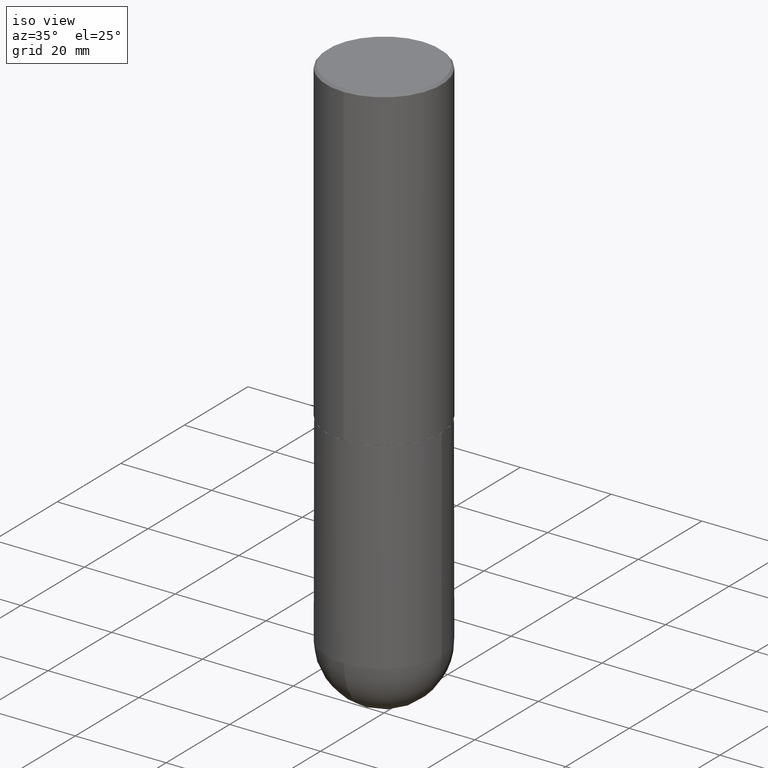
[diagram: clean part render]
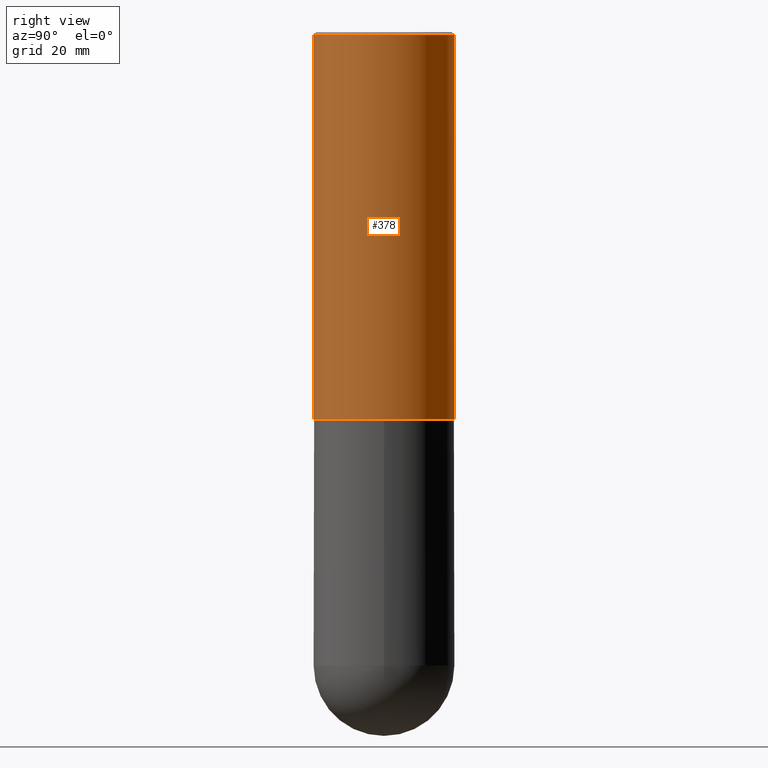
[diagram: tour spotlight — one face highlighted and labeled with its STEP entity id]
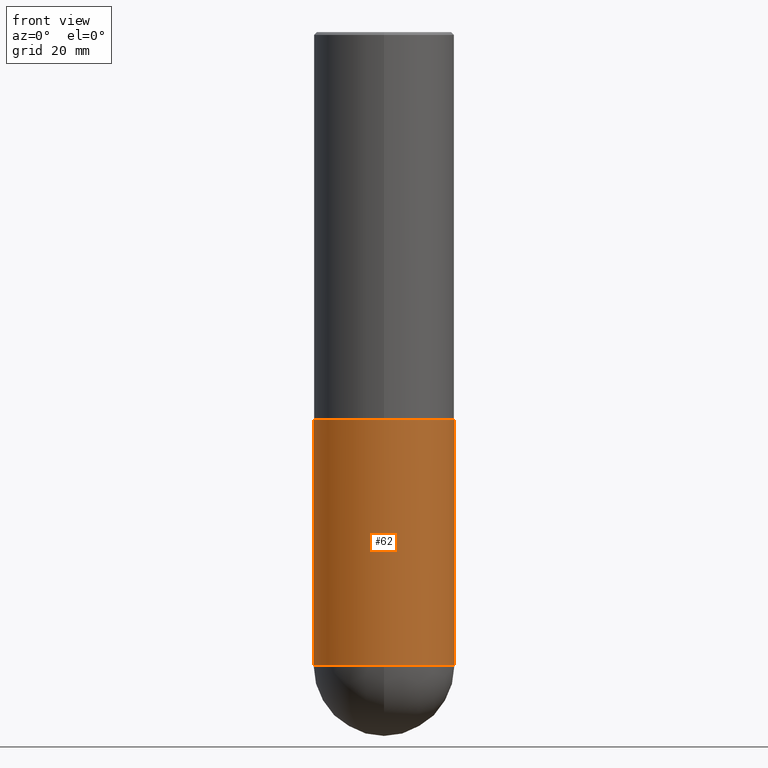
[diagram: tour spotlight — one face highlighted and labeled with its STEP entity id]
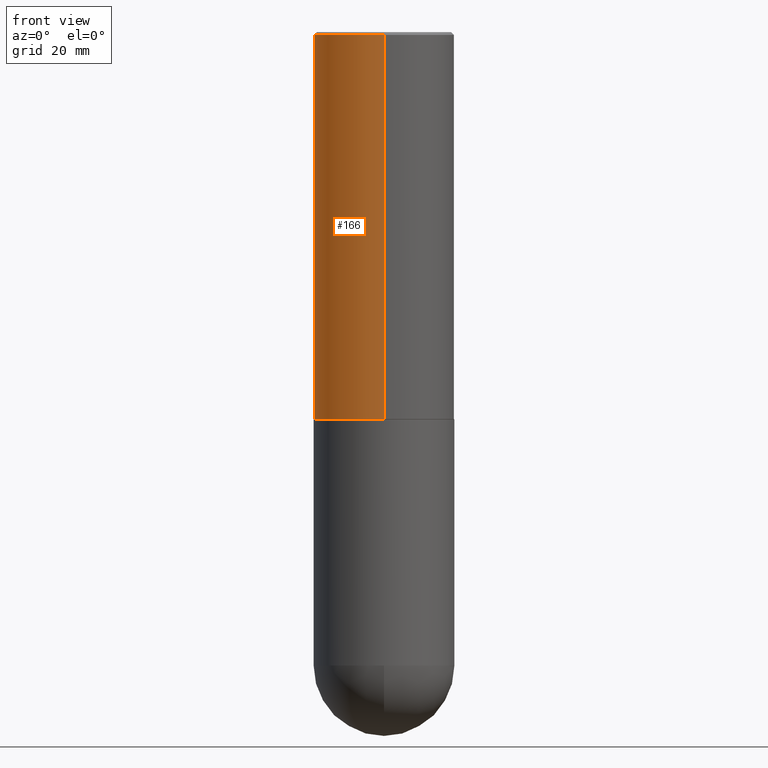
[diagram: tour spotlight — one face highlighted and labeled with its STEP entity id]
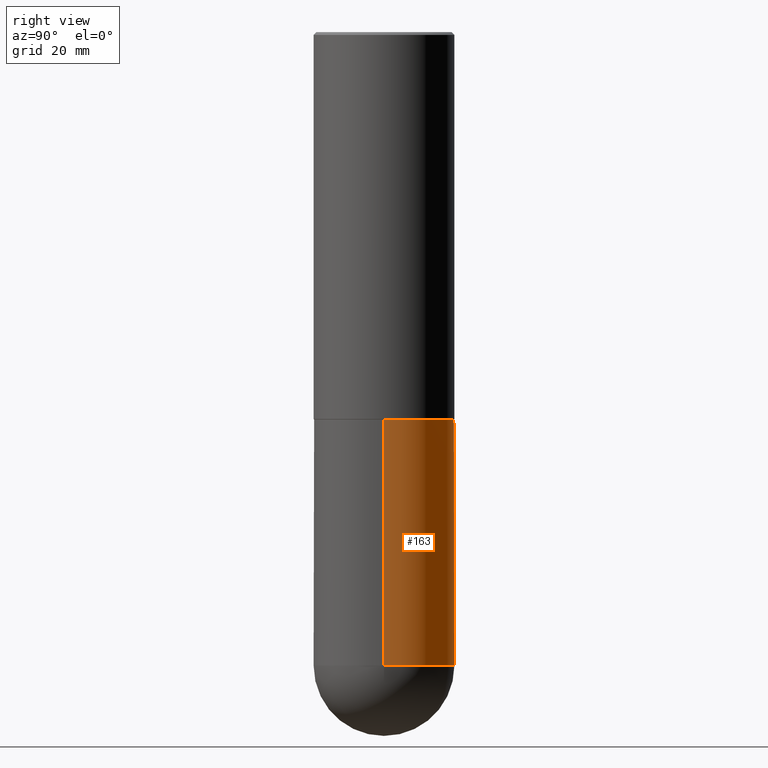
[diagram: tour spotlight — one face highlighted and labeled with its STEP entity id]
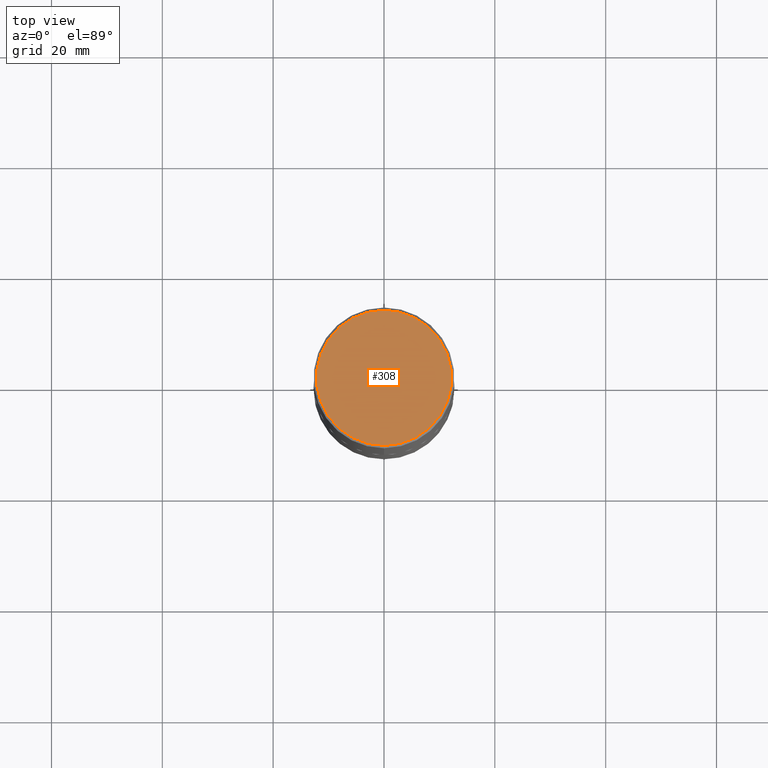
[diagram: tour spotlight — one face highlighted and labeled with its STEP entity id]
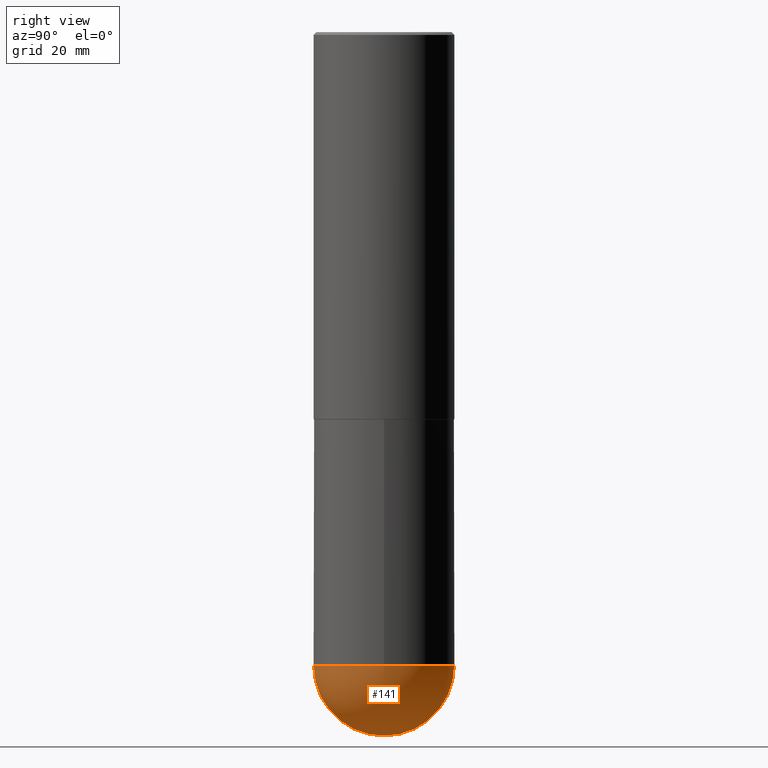
[diagram: tour spotlight — one face highlighted and labeled with its STEP entity id]
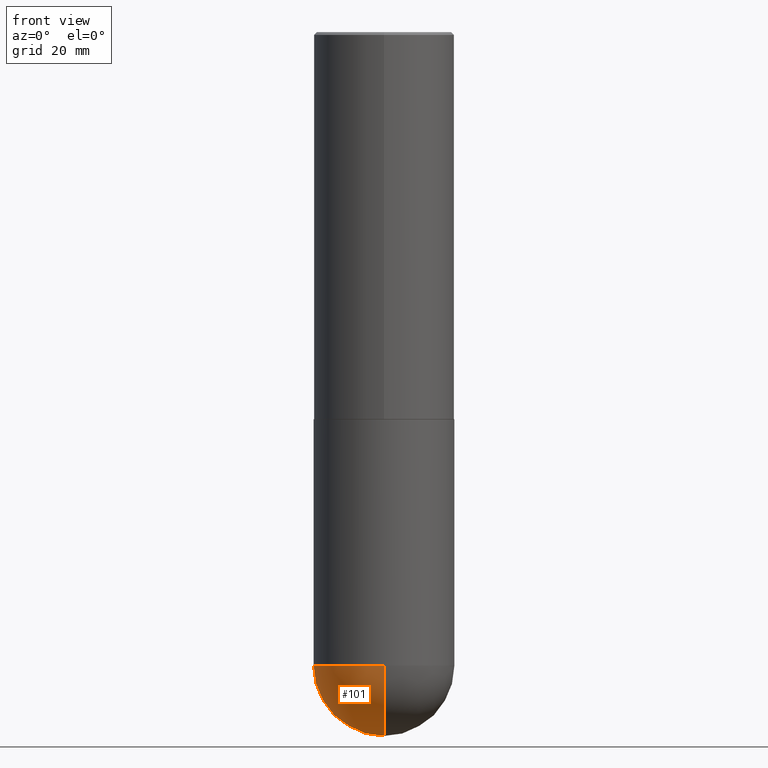
[diagram: tour spotlight — one face highlighted and labeled with its STEP entity id]
A machine part: a face-by-face anatomy tour. The part has 13 B-rep faces; the first image is the clean iso view, then the 7 largest visible faces are spotlighted one at a time (largest first), each with its STEP entity span.

Face 1 — right view, entity #378. In plain terms, the highlighted cylindrical surface (partial cylindrical patch) has radius 12.7 mm, axis along (-0, 0, 1).
Definition (entity closure, byte-faithful):
#16 = ORIENTED_EDGE ( 'NONE', *, *, #115, .F. ) ;
#30 = CARTESIAN_POINT ( 'NONE',  ( -3.491481338843134933E-15, -0.5000000000000002220, 1.747237952946052073E-15 ) ) ;
#67 = CARTESIAN_POINT ( 'NONE',  ( 3.552713678800502507E-15, 0.5000000000000002220, -1.747237952946052073E-15 ) ) ;
#73 = EDGE_CURVE ( 'NONE', #105, #311, #224, .T. ) ;
#82 = CIRCLE ( 'NONE', #301, 0.5000000000000001110 ) ;
#96 = LINE ( 'NONE', #67, #204 ) ;
#98 = CARTESIAN_POINT ( 'NONE',  ( 3.552713678800536428E-15, 0.4999999999999908407, -2.749000000000001886 ) ) ;
#99 = DIRECTION ( 'NONE',  ( -6.982962677686265133E-15, -1.000000000000000000, 3.278217592397113101E-15 ) ) ;
#105 = VERTEX_POINT ( 'NONE', #248 ) ;
#108 = EDGE_CURVE ( 'NONE', #198, #242, #82, .T. ) ;
#115 = EDGE_CURVE ( 'NONE', #105, #198, #190, .T. ) ;
#138 = VECTOR ( 'NONE', #294, 39.37007874015748143 ) ;
#154 = DIRECTION ( 'NONE',  ( -6.982962677686266711E-15, -1.000000000000000000, 3.494475905892102568E-15 ) ) ;
#159 = DIRECTION ( 'NONE',  ( -6.982962677686265922E-15, -1.000000000000000000, 3.491643216902135619E-15 ) ) ;
#160 = DIRECTION ( 'NONE',  ( -2.443377711191267396E-29, 3.494475905892102173E-15, 1.000000000000000000 ) ) ;
#167 = AXIS2_PLACEMENT_3D ( 'NONE', #185, #322, #154 ) ;
#185 = CARTESIAN_POINT ( 'NONE',  ( 0.000000000000000000, 0.000000000000000000, 0.000000000000000000 ) ) ;
#190 = LINE ( 'NONE', #30, #138 ) ;
#193 = EDGE_CURVE ( 'NONE', #311, #242, #96, .T. ) ;
#197 = EDGE_LOOP ( 'NONE', ( #203, #205, #367, #16 ) ) ;
#198 = VERTEX_POINT ( 'NONE', #398 ) ;
#203 = ORIENTED_EDGE ( 'NONE', *, *, #73, .T. ) ;
#204 = VECTOR ( 'NONE', #327, 39.37007874015748143 ) ;
#205 = ORIENTED_EDGE ( 'NONE', *, *, #193, .T. ) ;
#224 = CIRCLE ( 'NONE', #287, 0.5000000000000004441 ) ;
#242 = VERTEX_POINT ( 'NONE', #400 ) ;
#248 = CARTESIAN_POINT ( 'NONE',  ( -3.491481338843069063E-15, -0.5000000000000099920, -2.748999999999998334 ) ) ;
#287 = AXIS2_PLACEMENT_3D ( 'NONE', #385, #324, #99 ) ;
#288 = CARTESIAN_POINT ( 'NONE',  ( 4.886755422382561102E-31, -6.988951811784240684E-17, -0.02000000000000010797 ) ) ;
#294 = DIRECTION ( 'NONE',  ( -2.443377711191267116E-29, 3.494475905892102173E-15, 1.000000000000000000 ) ) ;
#301 = AXIS2_PLACEMENT_3D ( 'NONE', #288, #160, #159 ) ;
#311 = VERTEX_POINT ( 'NONE', #98 ) ;
#319 = FACE_OUTER_BOUND ( 'NONE', #197, .T. ) ;
#322 = DIRECTION ( 'NONE',  ( -2.443377711191267396E-29, 3.494475905892102173E-15, 1.000000000000000000 ) ) ;
#324 = DIRECTION ( 'NONE',  ( -2.443377711191267396E-29, 3.494475905892102173E-15, 1.000000000000000000 ) ) ;
#327 = DIRECTION ( 'NONE',  ( -2.443377711191267116E-29, 3.494475905892102173E-15, 1.000000000000000000 ) ) ;
#348 = CYLINDRICAL_SURFACE ( 'NONE', #167, 0.5000000000000002220 ) ;
#367 = ORIENTED_EDGE ( 'NONE', *, *, #108, .F. ) ;
#378 = ADVANCED_FACE ( 'NONE', ( #319 ), #348, .T. ) ;
#385 = CARTESIAN_POINT ( 'NONE',  ( 6.716845328064793866E-29, -9.606314265297387659E-15, -2.749000000000000110 ) ) ;
#398 = CARTESIAN_POINT ( 'NONE',  ( -3.430248998885765781E-15, -0.5000000000000002220, -0.01999999999999835937 ) ) ;
#400 = CARTESIAN_POINT ( 'NONE',  ( 3.491481338843134539E-15, 0.5000000000000001110, -0.02000000000000185310 ) ) ;

Face 2 — front view, entity #62. In plain terms, the highlighted cylindrical surface (partial cylindrical patch) has radius 12.7 mm, axis along (-0, 0, 1).
Definition (entity closure, byte-faithful):
#9 = DIRECTION ( 'NONE',  ( 1.000000000000000000, -6.982962677686266711E-15, 4.876176775795935793E-29 ) ) ;
#27 = ORIENTED_EDGE ( 'NONE', *, *, #408, .T. ) ;
#32 = VECTOR ( 'NONE', #263, 39.37007874015748143 ) ;
#46 = CARTESIAN_POINT ( 'NONE',  ( 1.100460962783311693E-28, -1.571166602479415690E-14, -4.500000000000000888 ) ) ;
#47 = DIRECTION ( 'NONE',  ( 1.000000000000000000, -6.982962677686270655E-15, 0.000000000000000000 ) ) ;
#52 = AXIS2_PLACEMENT_3D ( 'NONE', #355, #252, #9 ) ;
#57 = ORIENTED_EDGE ( 'NONE', *, *, #337, .T. ) ;
#62 = ADVANCED_FACE ( 'NONE', ( #176 ), #145, .T. ) ;
#64 = CARTESIAN_POINT ( 'NONE',  ( 0.5000000000000000000, -1.614810119214954068E-14, -4.500000000000000888 ) ) ;
#70 = AXIS2_PLACEMENT_3D ( 'NONE', #46, #180, #118 ) ;
#72 = CARTESIAN_POINT ( 'NONE',  ( 0.5000000000000000000, -3.491481338843133355E-15, 2.438088387897967896E-29 ) ) ;
#75 = CIRCLE ( 'NONE', #70, 0.5000000000000000000 ) ;
#83 = ORIENTED_EDGE ( 'NONE', *, *, #250, .F. ) ;
#106 = VERTEX_POINT ( 'NONE', #64 ) ;
#118 = DIRECTION ( 'NONE',  ( 1.000000000000000000, -6.982962677686270655E-15, 0.000000000000000000 ) ) ;
#131 = CARTESIAN_POINT ( 'NONE',  ( -0.5000000000000000000, -9.103906174505906393E-15, -4.500000000000000888 ) ) ;
#132 = CARTESIAN_POINT ( 'NONE',  ( -0.5000000000000000000, -9.103906174505901660E-15, -2.750000000000000000 ) ) ;
#135 = DIRECTION ( 'NONE',  ( -2.445468806185136877E-29, 3.491481338843145188E-15, 1.000000000000000000 ) ) ;
#143 = CIRCLE ( 'NONE', #354, 0.5000000000000000000 ) ;
#145 = CYLINDRICAL_SURFACE ( 'NONE', #52, 0.5000000000000000000 ) ;
#169 = CARTESIAN_POINT ( 'NONE',  ( 6.725039217009124520E-29, -9.601573681818649859E-15, -2.750000000000000000 ) ) ;
#170 = VERTEX_POINT ( 'NONE', #131 ) ;
#176 = FACE_OUTER_BOUND ( 'NONE', #177, .T. ) ;
#177 = EDGE_LOOP ( 'NONE', ( #83, #27, #57, #229, #280 ) ) ;
#180 = DIRECTION ( 'NONE',  ( -2.445468806185136597E-29, 3.491481338843145583E-15, 1.000000000000000000 ) ) ;
#183 = DIRECTION ( 'NONE',  ( -2.445468806185136597E-29, 3.491481338843145583E-15, 1.000000000000000000 ) ) ;
#214 = CARTESIAN_POINT ( 'NONE',  ( 0.5000000000000000000, -1.309305502066178321E-14, -2.750000000000000000 ) ) ;
#225 = AXIS2_PLACEMENT_3D ( 'NONE', #299, #227, #47 ) ;
#227 = DIRECTION ( 'NONE',  ( -2.445468806185136597E-29, 3.491481338843145583E-15, 1.000000000000000000 ) ) ;
#229 = ORIENTED_EDGE ( 'NONE', *, *, #291, .T. ) ;
#250 = EDGE_CURVE ( 'NONE', #170, #276, #305, .T. ) ;
#252 = DIRECTION ( 'NONE',  ( -2.445468806185136597E-29, 3.491481338843145583E-15, 1.000000000000000000 ) ) ;
#258 = CARTESIAN_POINT ( 'NONE',  ( -3.552713678800393250E-15, -0.5000000000000160982, -4.499999999999999112 ) ) ;
#263 = DIRECTION ( 'NONE',  ( -2.445468806185136877E-29, 3.491481338843145188E-15, 1.000000000000000000 ) ) ;
#276 = VERTEX_POINT ( 'NONE', #132 ) ;
#280 = ORIENTED_EDGE ( 'NONE', *, *, #372, .F. ) ;
#289 = CIRCLE ( 'NONE', #225, 0.5000000000000000000 ) ;
#291 = EDGE_CURVE ( 'NONE', #106, #364, #397, .T. ) ;
#298 = CARTESIAN_POINT ( 'NONE',  ( -0.5000000000000000000, 3.552713678800500929E-15, -2.459467545127452891E-29 ) ) ;
#299 = CARTESIAN_POINT ( 'NONE',  ( 1.100460962783311693E-28, -1.571166602479415690E-14, -4.500000000000000888 ) ) ;
#300 = VERTEX_POINT ( 'NONE', #258 ) ;
#303 = VECTOR ( 'NONE', #135, 39.37007874015748143 ) ;
#305 = LINE ( 'NONE', #298, #32 ) ;
#337 = EDGE_CURVE ( 'NONE', #300, #106, #75, .T. ) ;
#354 = AXIS2_PLACEMENT_3D ( 'NONE', #169, #183, #399 ) ;
#355 = CARTESIAN_POINT ( 'NONE',  ( 0.000000000000000000, 0.000000000000000000, 0.000000000000000000 ) ) ;
#364 = VERTEX_POINT ( 'NONE', #214 ) ;
#372 = EDGE_CURVE ( 'NONE', #276, #364, #143, .T. ) ;
#397 = LINE ( 'NONE', #72, #303 ) ;
#399 = DIRECTION ( 'NONE',  ( 1.000000000000000000, -6.982962677686266711E-15, 0.000000000000000000 ) ) ;
#408 = EDGE_CURVE ( 'NONE', #170, #300, #289, .T. ) ;

Face 3 — front view, entity #166. In plain terms, the highlighted cylindrical surface (partial cylindrical patch) has radius 12.7 mm, axis along (-0, 0, 1).
Definition (entity closure, byte-faithful):
#11 = CIRCLE ( 'NONE', #188, 0.5000000000000001110 ) ;
#20 = ORIENTED_EDGE ( 'NONE', *, *, #193, .F. ) ;
#30 = CARTESIAN_POINT ( 'NONE',  ( -3.491481338843134933E-15, -0.5000000000000002220, 1.747237952946052073E-15 ) ) ;
#31 = AXIS2_PLACEMENT_3D ( 'NONE', #38, #66, #383 ) ;
#38 = CARTESIAN_POINT ( 'NONE',  ( 6.716845328064793866E-29, -9.606314265297387659E-15, -2.749000000000000110 ) ) ;
#39 = DIRECTION ( 'NONE',  ( -6.982962677686266711E-15, -1.000000000000000000, 3.494475905892102568E-15 ) ) ;
#66 = DIRECTION ( 'NONE',  ( -2.443377711191267396E-29, 3.494475905892102173E-15, 1.000000000000000000 ) ) ;
#67 = CARTESIAN_POINT ( 'NONE',  ( 3.552713678800502507E-15, 0.5000000000000002220, -1.747237952946052073E-15 ) ) ;
#90 = EDGE_CURVE ( 'NONE', #311, #105, #155, .T. ) ;
#96 = LINE ( 'NONE', #67, #204 ) ;
#98 = CARTESIAN_POINT ( 'NONE',  ( 3.552713678800536428E-15, 0.4999999999999908407, -2.749000000000001886 ) ) ;
#105 = VERTEX_POINT ( 'NONE', #248 ) ;
#115 = EDGE_CURVE ( 'NONE', #105, #198, #190, .T. ) ;
#138 = VECTOR ( 'NONE', #294, 39.37007874015748143 ) ;
#155 = CIRCLE ( 'NONE', #31, 0.5000000000000004441 ) ;
#166 = ADVANCED_FACE ( 'NONE', ( #389 ), #328, .T. ) ;
#186 = DIRECTION ( 'NONE',  ( -2.443377711191267396E-29, 3.494475905892102173E-15, 1.000000000000000000 ) ) ;
#188 = AXIS2_PLACEMENT_3D ( 'NONE', #232, #268, #260 ) ;
#190 = LINE ( 'NONE', #30, #138 ) ;
#193 = EDGE_CURVE ( 'NONE', #311, #242, #96, .T. ) ;
#198 = VERTEX_POINT ( 'NONE', #398 ) ;
#204 = VECTOR ( 'NONE', #327, 39.37007874015748143 ) ;
#232 = CARTESIAN_POINT ( 'NONE',  ( 4.886755422382561102E-31, -6.988951811784240684E-17, -0.02000000000000010797 ) ) ;
#242 = VERTEX_POINT ( 'NONE', #400 ) ;
#248 = CARTESIAN_POINT ( 'NONE',  ( -3.491481338843069063E-15, -0.5000000000000099920, -2.748999999999998334 ) ) ;
#260 = DIRECTION ( 'NONE',  ( -6.982962677686265922E-15, -1.000000000000000000, 3.491643216902135619E-15 ) ) ;
#268 = DIRECTION ( 'NONE',  ( -2.443377711191267396E-29, 3.494475905892102173E-15, 1.000000000000000000 ) ) ;
#273 = ORIENTED_EDGE ( 'NONE', *, *, #115, .T. ) ;
#292 = CARTESIAN_POINT ( 'NONE',  ( 0.000000000000000000, 0.000000000000000000, 0.000000000000000000 ) ) ;
#294 = DIRECTION ( 'NONE',  ( -2.443377711191267116E-29, 3.494475905892102173E-15, 1.000000000000000000 ) ) ;
#311 = VERTEX_POINT ( 'NONE', #98 ) ;
#317 = AXIS2_PLACEMENT_3D ( 'NONE', #292, #186, #39 ) ;
#327 = DIRECTION ( 'NONE',  ( -2.443377711191267116E-29, 3.494475905892102173E-15, 1.000000000000000000 ) ) ;
#328 = CYLINDRICAL_SURFACE ( 'NONE', #317, 0.5000000000000002220 ) ;
#335 = ORIENTED_EDGE ( 'NONE', *, *, #390, .F. ) ;
#370 = EDGE_LOOP ( 'NONE', ( #20, #373, #273, #335 ) ) ;
#373 = ORIENTED_EDGE ( 'NONE', *, *, #90, .T. ) ;
#383 = DIRECTION ( 'NONE',  ( -6.982962677686265133E-15, -1.000000000000000000, 3.278217592397113101E-15 ) ) ;
#389 = FACE_OUTER_BOUND ( 'NONE', #370, .T. ) ;
#390 = EDGE_CURVE ( 'NONE', #242, #198, #11, .T. ) ;
#398 = CARTESIAN_POINT ( 'NONE',  ( -3.430248998885765781E-15, -0.5000000000000002220, -0.01999999999999835937 ) ) ;
#400 = CARTESIAN_POINT ( 'NONE',  ( 3.491481338843134539E-15, 0.5000000000000001110, -0.02000000000000185310 ) ) ;

Face 4 — right view, entity #163. In plain terms, the highlighted cylindrical surface (partial cylindrical patch) has radius 12.7 mm, axis along (-0, 0, 1).
Definition (entity closure, byte-faithful):
#4 = AXIS2_PLACEMENT_3D ( 'NONE', #24, #58, #249 ) ;
#24 = CARTESIAN_POINT ( 'NONE',  ( 1.100460962783311693E-28, -1.571166602479415690E-14, -4.500000000000000888 ) ) ;
#32 = VECTOR ( 'NONE', #263, 39.37007874015748143 ) ;
#36 = DIRECTION ( 'NONE',  ( 1.000000000000000000, -6.982962677686266711E-15, 4.876176775795935793E-29 ) ) ;
#44 = EDGE_CURVE ( 'NONE', #306, #170, #219, .T. ) ;
#58 = DIRECTION ( 'NONE',  ( -2.445468806185136597E-29, 3.491481338843145583E-15, 1.000000000000000000 ) ) ;
#63 = FACE_OUTER_BOUND ( 'NONE', #74, .T. ) ;
#64 = CARTESIAN_POINT ( 'NONE',  ( 0.5000000000000000000, -1.614810119214954068E-14, -4.500000000000000888 ) ) ;
#71 = ORIENTED_EDGE ( 'NONE', *, *, #250, .T. ) ;
#72 = CARTESIAN_POINT ( 'NONE',  ( 0.5000000000000000000, -3.491481338843133355E-15, 2.438088387897967896E-29 ) ) ;
#74 = EDGE_LOOP ( 'NONE', ( #269, #71, #137, #76, #149 ) ) ;
#76 = ORIENTED_EDGE ( 'NONE', *, *, #291, .F. ) ;
#84 = DIRECTION ( 'NONE',  ( 1.000000000000000000, -6.982962677686266711E-15, 0.000000000000000000 ) ) ;
#88 = CARTESIAN_POINT ( 'NONE',  ( 1.100460962783311693E-28, -1.571166602479415690E-14, -4.500000000000000888 ) ) ;
#106 = VERTEX_POINT ( 'NONE', #64 ) ;
#111 = CIRCLE ( 'NONE', #302, 0.5000000000000000000 ) ;
#119 = CIRCLE ( 'NONE', #4, 0.5000000000000000000 ) ;
#131 = CARTESIAN_POINT ( 'NONE',  ( -0.5000000000000000000, -9.103906174505906393E-15, -4.500000000000000888 ) ) ;
#132 = CARTESIAN_POINT ( 'NONE',  ( -0.5000000000000000000, -9.103906174505901660E-15, -2.750000000000000000 ) ) ;
#135 = DIRECTION ( 'NONE',  ( -2.445468806185136877E-29, 3.491481338843145188E-15, 1.000000000000000000 ) ) ;
#137 = ORIENTED_EDGE ( 'NONE', *, *, #346, .F. ) ;
#139 = AXIS2_PLACEMENT_3D ( 'NONE', #194, #326, #36 ) ;
#149 = ORIENTED_EDGE ( 'NONE', *, *, #361, .T. ) ;
#163 = ADVANCED_FACE ( 'NONE', ( #63 ), #253, .T. ) ;
#170 = VERTEX_POINT ( 'NONE', #131 ) ;
#194 = CARTESIAN_POINT ( 'NONE',  ( 0.000000000000000000, 0.000000000000000000, 0.000000000000000000 ) ) ;
#211 = DIRECTION ( 'NONE',  ( -2.445468806185136597E-29, 3.491481338843145583E-15, 1.000000000000000000 ) ) ;
#214 = CARTESIAN_POINT ( 'NONE',  ( 0.5000000000000000000, -1.309305502066178321E-14, -2.750000000000000000 ) ) ;
#219 = CIRCLE ( 'NONE', #262, 0.5000000000000000000 ) ;
#243 = CARTESIAN_POINT ( 'NONE',  ( 6.725039217009124520E-29, -9.601573681818649859E-15, -2.750000000000000000 ) ) ;
#249 = DIRECTION ( 'NONE',  ( 1.000000000000000000, -6.982962677686270655E-15, 0.000000000000000000 ) ) ;
#250 = EDGE_CURVE ( 'NONE', #170, #276, #305, .T. ) ;
#253 = CYLINDRICAL_SURFACE ( 'NONE', #139, 0.5000000000000000000 ) ;
#262 = AXIS2_PLACEMENT_3D ( 'NONE', #88, #211, #412 ) ;
#263 = DIRECTION ( 'NONE',  ( -2.445468806185136877E-29, 3.491481338843145188E-15, 1.000000000000000000 ) ) ;
#266 = CARTESIAN_POINT ( 'NONE',  ( 3.491481338843242218E-15, 0.4999999999999841238, -4.500000000000002665 ) ) ;
#269 = ORIENTED_EDGE ( 'NONE', *, *, #44, .T. ) ;
#276 = VERTEX_POINT ( 'NONE', #132 ) ;
#291 = EDGE_CURVE ( 'NONE', #106, #364, #397, .T. ) ;
#298 = CARTESIAN_POINT ( 'NONE',  ( -0.5000000000000000000, 3.552713678800500929E-15, -2.459467545127452891E-29 ) ) ;
#302 = AXIS2_PLACEMENT_3D ( 'NONE', #243, #380, #84 ) ;
#303 = VECTOR ( 'NONE', #135, 39.37007874015748143 ) ;
#305 = LINE ( 'NONE', #298, #32 ) ;
#306 = VERTEX_POINT ( 'NONE', #266 ) ;
#326 = DIRECTION ( 'NONE',  ( -2.445468806185136597E-29, 3.491481338843145583E-15, 1.000000000000000000 ) ) ;
#346 = EDGE_CURVE ( 'NONE', #364, #276, #111, .T. ) ;
#361 = EDGE_CURVE ( 'NONE', #106, #306, #119, .T. ) ;
#364 = VERTEX_POINT ( 'NONE', #214 ) ;
#380 = DIRECTION ( 'NONE',  ( -2.445468806185136597E-29, 3.491481338843145583E-15, 1.000000000000000000 ) ) ;
#397 = LINE ( 'NONE', #72, #303 ) ;
#412 = DIRECTION ( 'NONE',  ( 1.000000000000000000, -6.982962677686270655E-15, 0.000000000000000000 ) ) ;

Face 5 — top view, entity #308. In plain terms, the highlighted planar face has unit normal (0, -0, -1).
Definition (entity closure, byte-faithful):
#6 = EDGE_CURVE ( 'NONE', #122, #208, #295, .T. ) ;
#10 = DIRECTION ( 'NONE',  ( -2.443377711191267396E-29, 3.494475905892102173E-15, 1.000000000000000000 ) ) ;
#40 = FACE_OUTER_BOUND ( 'NONE', #405, .T. ) ;
#56 = DIRECTION ( 'NONE',  ( -2.443377711191267396E-29, 3.494475905892102173E-15, 1.000000000000000000 ) ) ;
#113 = ORIENTED_EDGE ( 'NONE', *, *, #255, .T. ) ;
#122 = VERTEX_POINT ( 'NONE', #187 ) ;
#136 = CARTESIAN_POINT ( 'NONE',  ( -3.361644018908050450E-15, -0.4800000000000001488, 1.606221114680001624E-15 ) ) ;
#144 = ORIENTED_EDGE ( 'NONE', *, *, #6, .T. ) ;
#164 = DIRECTION ( 'NONE',  ( 6.982962677686265922E-15, 1.000000000000000000, -3.494475905892102173E-15 ) ) ;
#179 = DIRECTION ( 'NONE',  ( -6.982962677686265922E-15, -1.000000000000000000, 3.494475905892102173E-15 ) ) ;
#187 = CARTESIAN_POINT ( 'NONE',  ( 3.421651712066271635E-15, 0.4800000000000001488, -1.748475754976417733E-15 ) ) ;
#199 = AXIS2_PLACEMENT_3D ( 'NONE', #256, #388, #164 ) ;
#208 = VERTEX_POINT ( 'NONE', #136 ) ;
#233 = CIRCLE ( 'NONE', #407, 0.4800000000000001488 ) ;
#240 = AXIS2_PLACEMENT_3D ( 'NONE', #314, #56, #179 ) ;
#255 = EDGE_CURVE ( 'NONE', #208, #122, #233, .T. ) ;
#256 = CARTESIAN_POINT ( 'NONE',  ( 3.351822085289408731E-15, 0.4800000000000001488, -1.712912094902313262E-15 ) ) ;
#295 = CIRCLE ( 'NONE', #240, 0.4800000000000001488 ) ;
#308 = ADVANCED_FACE ( 'NONE', ( #40 ), #391, .F. ) ;
#314 = CARTESIAN_POINT ( 'NONE',  ( 1.737909087068967574E-45, -2.485527065085864041E-31, -7.112732014820790665E-17 ) ) ;
#330 = DIRECTION ( 'NONE',  ( -6.982962677686265922E-15, -1.000000000000000000, 3.494475905892102173E-15 ) ) ;
#333 = CARTESIAN_POINT ( 'NONE',  ( 1.737909087068967574E-45, -2.485527065085864041E-31, -7.112732014820790665E-17 ) ) ;
#388 = DIRECTION ( 'NONE',  ( 2.443377711191267116E-29, -3.494475905892102173E-15, -1.000000000000000000 ) ) ;
#391 = PLANE ( 'NONE',  #199 ) ;
#405 = EDGE_LOOP ( 'NONE', ( #144, #113 ) ) ;
#407 = AXIS2_PLACEMENT_3D ( 'NONE', #333, #10, #330 ) ;

Face 6 — right view, entity #141. In plain terms, the highlighted spherical surface has radius 12.7 mm.
Definition (entity closure, byte-faithful):
#4 = AXIS2_PLACEMENT_3D ( 'NONE', #24, #58, #249 ) ;
#24 = CARTESIAN_POINT ( 'NONE',  ( 1.100460962783311693E-28, -1.571166602479415690E-14, -4.500000000000000888 ) ) ;
#46 = CARTESIAN_POINT ( 'NONE',  ( 1.100460962783311693E-28, -1.571166602479415690E-14, -4.500000000000000888 ) ) ;
#58 = DIRECTION ( 'NONE',  ( -2.445468806185136597E-29, 3.491481338843145583E-15, 1.000000000000000000 ) ) ;
#59 = CIRCLE ( 'NONE', #120, 0.5000000000000002220 ) ;
#64 = CARTESIAN_POINT ( 'NONE',  ( 0.5000000000000000000, -1.614810119214954068E-14, -4.500000000000000888 ) ) ;
#68 = DIRECTION ( 'NONE',  ( 1.000000000000000000, -6.982962677686265922E-15, 4.883557194083112340E-29 ) ) ;
#70 = AXIS2_PLACEMENT_3D ( 'NONE', #46, #180, #118 ) ;
#75 = CIRCLE ( 'NONE', #70, 0.5000000000000000000 ) ;
#91 = CARTESIAN_POINT ( 'NONE',  ( 1.067348984991922956E-28, -1.618584839293420562E-14, -4.500000000000000000 ) ) ;
#106 = VERTEX_POINT ( 'NONE', #64 ) ;
#118 = DIRECTION ( 'NONE',  ( 1.000000000000000000, -6.982962677686270655E-15, 0.000000000000000000 ) ) ;
#119 = CIRCLE ( 'NONE', #4, 0.5000000000000000000 ) ;
#120 = AXIS2_PLACEMENT_3D ( 'NONE', #387, #217, #351 ) ;
#129 = EDGE_CURVE ( 'NONE', #213, #306, #406, .T. ) ;
#134 = SPHERICAL_SURFACE ( 'NONE', #363, 0.5000000000000002220 ) ;
#141 = ADVANCED_FACE ( 'NONE', ( #350 ), #134, .T. ) ;
#152 = ORIENTED_EDGE ( 'NONE', *, *, #361, .F. ) ;
#165 = ORIENTED_EDGE ( 'NONE', *, *, #129, .T. ) ;
#180 = DIRECTION ( 'NONE',  ( -2.445468806185136597E-29, 3.491481338843145583E-15, 1.000000000000000000 ) ) ;
#181 = EDGE_CURVE ( 'NONE', #213, #300, #59, .T. ) ;
#184 = ORIENTED_EDGE ( 'NONE', *, *, #181, .F. ) ;
#213 = VERTEX_POINT ( 'NONE', #366 ) ;
#217 = DIRECTION ( 'NONE',  ( -1.000000000000000000, 7.105427357601001070E-15, -4.926315508542082329E-29 ) ) ;
#220 = DIRECTION ( 'NONE',  ( 6.982962677686266711E-15, 1.000000000000000000, 0.000000000000000000 ) ) ;
#249 = DIRECTION ( 'NONE',  ( 1.000000000000000000, -6.982962677686270655E-15, 0.000000000000000000 ) ) ;
#254 = DIRECTION ( 'NONE',  ( -1.000000000000000000, 6.982962677686265922E-15, -4.883557194083113462E-29 ) ) ;
#258 = CARTESIAN_POINT ( 'NONE',  ( -3.552713678800393250E-15, -0.5000000000000160982, -4.499999999999999112 ) ) ;
#266 = CARTESIAN_POINT ( 'NONE',  ( 3.491481338843242218E-15, 0.4999999999999841238, -4.500000000000002665 ) ) ;
#300 = VERTEX_POINT ( 'NONE', #258 ) ;
#306 = VERTEX_POINT ( 'NONE', #266 ) ;
#329 = AXIS2_PLACEMENT_3D ( 'NONE', #91, #68, #220 ) ;
#337 = EDGE_CURVE ( 'NONE', #300, #106, #75, .T. ) ;
#347 = ORIENTED_EDGE ( 'NONE', *, *, #337, .F. ) ;
#350 = FACE_OUTER_BOUND ( 'NONE', #395, .T. ) ;
#351 = DIRECTION ( 'NONE',  ( -7.105427357601001859E-15, -1.000000000000000000, 0.000000000000000000 ) ) ;
#357 = DIRECTION ( 'NONE',  ( 6.982962677686265922E-15, 1.000000000000000000, -3.278217592397114284E-15 ) ) ;
#360 = CARTESIAN_POINT ( 'NONE',  ( 1.067348984991922956E-28, -1.618584839293420562E-14, -4.500000000000000000 ) ) ;
#361 = EDGE_CURVE ( 'NONE', #106, #306, #119, .T. ) ;
#363 = AXIS2_PLACEMENT_3D ( 'NONE', #360, #254, #357 ) ;
#366 = CARTESIAN_POINT ( 'NONE',  ( 1.191760341024128201E-28, -1.790097289237709482E-14, -5.000000000000000000 ) ) ;
#387 = CARTESIAN_POINT ( 'NONE',  ( 1.067348984991922956E-28, -1.618584839293420562E-14, -4.500000000000000000 ) ) ;
#395 = EDGE_LOOP ( 'NONE', ( #184, #165, #152, #347 ) ) ;
#406 = CIRCLE ( 'NONE', #329, 0.5000000000000002220 ) ;

Face 7 — front view, entity #101. In plain terms, the highlighted spherical surface has radius 12.7 mm.
Definition (entity closure, byte-faithful):
#23 = ORIENTED_EDGE ( 'NONE', *, *, #181, .T. ) ;
#44 = EDGE_CURVE ( 'NONE', #306, #170, #219, .T. ) ;
#47 = DIRECTION ( 'NONE',  ( 1.000000000000000000, -6.982962677686270655E-15, 0.000000000000000000 ) ) ;
#59 = CIRCLE ( 'NONE', #120, 0.5000000000000002220 ) ;
#68 = DIRECTION ( 'NONE',  ( 1.000000000000000000, -6.982962677686265922E-15, 4.883557194083112340E-29 ) ) ;
#88 = CARTESIAN_POINT ( 'NONE',  ( 1.100460962783311693E-28, -1.571166602479415690E-14, -4.500000000000000888 ) ) ;
#89 = ORIENTED_EDGE ( 'NONE', *, *, #44, .F. ) ;
#91 = CARTESIAN_POINT ( 'NONE',  ( 1.067348984991922956E-28, -1.618584839293420562E-14, -4.500000000000000000 ) ) ;
#94 = FACE_OUTER_BOUND ( 'NONE', #341, .T. ) ;
#101 = ADVANCED_FACE ( 'NONE', ( #94 ), #215, .T. ) ;
#120 = AXIS2_PLACEMENT_3D ( 'NONE', #387, #217, #351 ) ;
#129 = EDGE_CURVE ( 'NONE', #213, #306, #406, .T. ) ;
#131 = CARTESIAN_POINT ( 'NONE',  ( -0.5000000000000000000, -9.103906174505906393E-15, -4.500000000000000888 ) ) ;
#170 = VERTEX_POINT ( 'NONE', #131 ) ;
#181 = EDGE_CURVE ( 'NONE', #213, #300, #59, .T. ) ;
#211 = DIRECTION ( 'NONE',  ( -2.445468806185136597E-29, 3.491481338843145583E-15, 1.000000000000000000 ) ) ;
#213 = VERTEX_POINT ( 'NONE', #366 ) ;
#215 = SPHERICAL_SURFACE ( 'NONE', #239, 0.5000000000000002220 ) ;
#217 = DIRECTION ( 'NONE',  ( -1.000000000000000000, 7.105427357601001070E-15, -4.926315508542082329E-29 ) ) ;
#218 = CARTESIAN_POINT ( 'NONE',  ( 1.067348984991922956E-28, -1.618584839293420562E-14, -4.500000000000000000 ) ) ;
#219 = CIRCLE ( 'NONE', #262, 0.5000000000000000000 ) ;
#220 = DIRECTION ( 'NONE',  ( 6.982962677686266711E-15, 1.000000000000000000, 0.000000000000000000 ) ) ;
#225 = AXIS2_PLACEMENT_3D ( 'NONE', #299, #227, #47 ) ;
#227 = DIRECTION ( 'NONE',  ( -2.445468806185136597E-29, 3.491481338843145583E-15, 1.000000000000000000 ) ) ;
#239 = AXIS2_PLACEMENT_3D ( 'NONE', #218, #257, #290 ) ;
#257 = DIRECTION ( 'NONE',  ( -1.000000000000000000, 6.982962677686265922E-15, -4.883557194083113462E-29 ) ) ;
#258 = CARTESIAN_POINT ( 'NONE',  ( -3.552713678800393250E-15, -0.5000000000000160982, -4.499999999999999112 ) ) ;
#262 = AXIS2_PLACEMENT_3D ( 'NONE', #88, #211, #412 ) ;
#266 = CARTESIAN_POINT ( 'NONE',  ( 3.491481338843242218E-15, 0.4999999999999841238, -4.500000000000002665 ) ) ;
#289 = CIRCLE ( 'NONE', #225, 0.5000000000000000000 ) ;
#290 = DIRECTION ( 'NONE',  ( 6.982962677686265922E-15, 1.000000000000000000, -3.278217592397114284E-15 ) ) ;
#299 = CARTESIAN_POINT ( 'NONE',  ( 1.100460962783311693E-28, -1.571166602479415690E-14, -4.500000000000000888 ) ) ;
#300 = VERTEX_POINT ( 'NONE', #258 ) ;
#306 = VERTEX_POINT ( 'NONE', #266 ) ;
#329 = AXIS2_PLACEMENT_3D ( 'NONE', #91, #68, #220 ) ;
#341 = EDGE_LOOP ( 'NONE', ( #403, #23, #376, #89 ) ) ;
#351 = DIRECTION ( 'NONE',  ( -7.105427357601001859E-15, -1.000000000000000000, 0.000000000000000000 ) ) ;
#366 = CARTESIAN_POINT ( 'NONE',  ( 1.191760341024128201E-28, -1.790097289237709482E-14, -5.000000000000000000 ) ) ;
#376 = ORIENTED_EDGE ( 'NONE', *, *, #408, .F. ) ;
#387 = CARTESIAN_POINT ( 'NONE',  ( 1.067348984991922956E-28, -1.618584839293420562E-14, -4.500000000000000000 ) ) ;
#403 = ORIENTED_EDGE ( 'NONE', *, *, #129, .F. ) ;
#406 = CIRCLE ( 'NONE', #329, 0.5000000000000002220 ) ;
#408 = EDGE_CURVE ( 'NONE', #170, #300, #289, .T. ) ;
#412 = DIRECTION ( 'NONE',  ( 1.000000000000000000, -6.982962677686270655E-15, 0.000000000000000000 ) ) ;